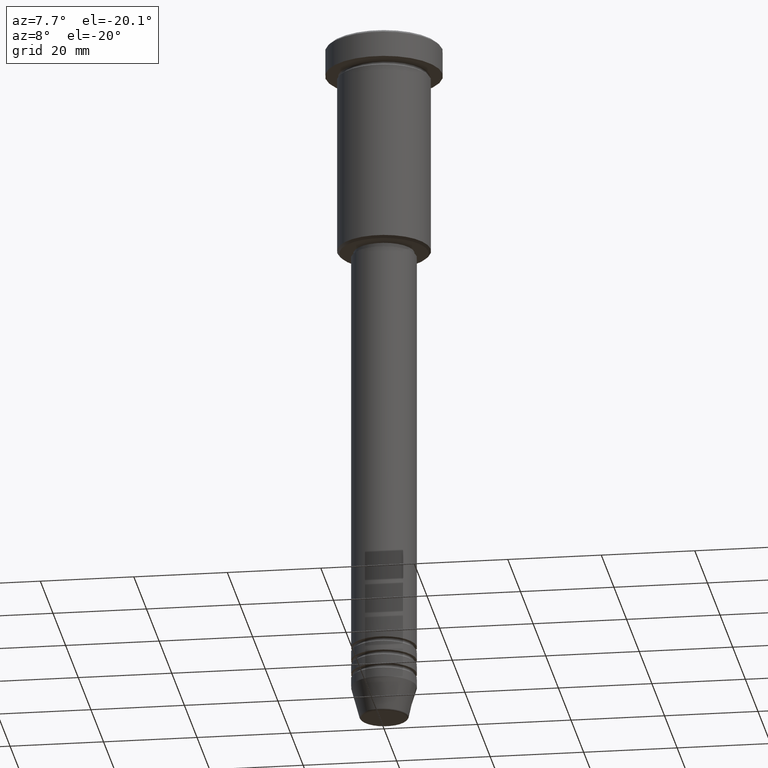
[diagram: clean part render]
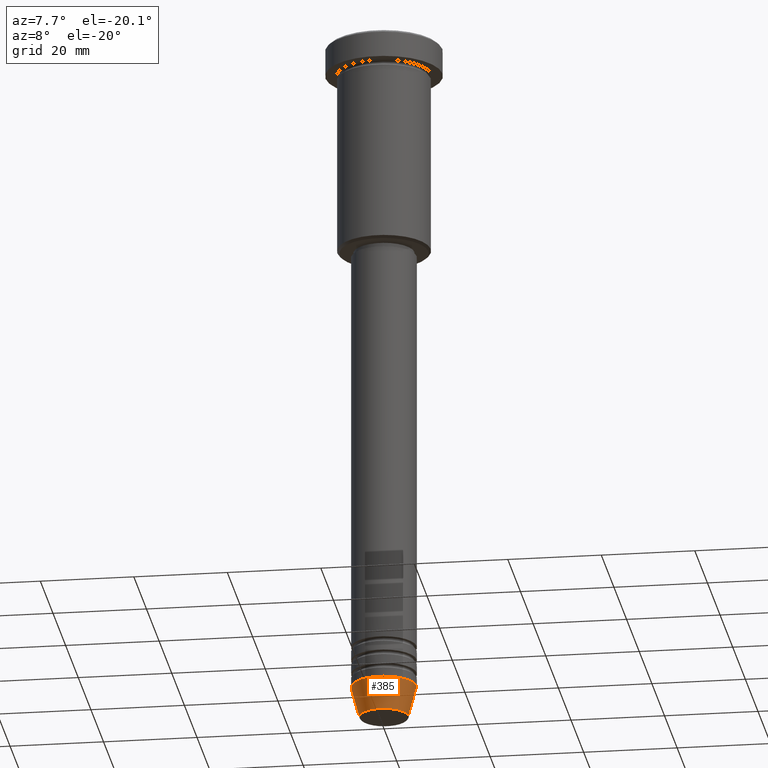
[diagram: same view with one face highlighted and labeled with its STEP entity id]
A machine part, auxiliary view. The second image highlights one B-rep face of the part: STEP entity #385.
In plain terms, the highlighted conical surface has half-angle 15 deg.
Its self-contained STEP definition (entity closure, byte-faithful):
#87 = DIRECTION ( 'NONE',  ( 1.000000000000000000, 0.000000000000000000, 0.000000000000000000 ) ) ;
#99 = EDGE_CURVE ( 'NONE', #640, #1048, #1042, .T. ) ;
#137 = EDGE_CURVE ( 'NONE', #1048, #539, #1000, .T. ) ;
#215 = CARTESIAN_POINT ( 'NONE',  ( -7.000000000000000000, 8.572527594031473190E-16, -144.0000000000000000 ) ) ;
#230 = EDGE_CURVE ( 'NONE', #640, #327, #632, .T. ) ;
#327 = VERTEX_POINT ( 'NONE', #1146 ) ;
#340 = DIRECTION ( 'NONE',  ( -0.000000000000000000, -0.000000000000000000, 1.000000000000000000 ) ) ;
#385 = ADVANCED_FACE ( 'NONE', ( #712 ), #436, .T. ) ;
#410 = ORIENTED_EDGE ( 'NONE', *, *, #137, .F. ) ;
#436 = CONICAL_SURFACE ( 'NONE', #1106, 7.000000000000000000, 0.2617993877991500740 ) ;
#454 = LINE ( 'NONE', #1161, #647 ) ;
#496 = CARTESIAN_POINT ( 'NONE',  ( -7.000000000000000000, 8.572527594031473190E-16, -144.0000000000000000 ) ) ;
#521 = ORIENTED_EDGE ( 'NONE', *, *, #99, .F. ) ;
#525 = CARTESIAN_POINT ( 'NONE',  ( 7.000000000000000000, 0.000000000000000000, -144.0000000000000000 ) ) ;
#539 = VERTEX_POINT ( 'NONE', #525 ) ;
#550 = CARTESIAN_POINT ( 'NONE',  ( -5.223655072137196598, 7.484830028987062146E-16, -150.6294095225512137 ) ) ;
#553 = VECTOR ( 'NONE', #755, 1000.000000000000000 ) ;
#617 = CARTESIAN_POINT ( 'NONE',  ( 0.000000000000000000, 0.000000000000000000, -144.0000000000000000 ) ) ;
#632 = CIRCLE ( 'NONE', #687, 5.223655072137196598 ) ;
#640 = VERTEX_POINT ( 'NONE', #550 ) ;
#647 = VECTOR ( 'NONE', #814, 1000.000000000000000 ) ;
#687 = AXIS2_PLACEMENT_3D ( 'NONE', #1046, #933, #1116 ) ;
#712 = FACE_OUTER_BOUND ( 'NONE', #1011, .T. ) ;
#737 = EDGE_CURVE ( 'NONE', #327, #539, #454, .T. ) ;
#755 = DIRECTION ( 'NONE',  ( -0.2588190451025213501, 3.169619151431772337E-17, 0.9659258262890680902 ) ) ;
#793 = CARTESIAN_POINT ( 'NONE',  ( 0.000000000000000000, 0.000000000000000000, -144.0000000000000000 ) ) ;
#813 = ORIENTED_EDGE ( 'NONE', *, *, #737, .T. ) ;
#814 = DIRECTION ( 'NONE',  ( 0.2588190451025213501, 0.000000000000000000, 0.9659258262890680902 ) ) ;
#889 = DIRECTION ( 'NONE',  ( -0.000000000000000000, -0.000000000000000000, 1.000000000000000000 ) ) ;
#933 = DIRECTION ( 'NONE',  ( -0.000000000000000000, -0.000000000000000000, 1.000000000000000000 ) ) ;
#1000 = CIRCLE ( 'NONE', #1110, 7.000000000000000000 ) ;
#1011 = EDGE_LOOP ( 'NONE', ( #521, #1181, #813, #410 ) ) ;
#1042 = LINE ( 'NONE', #496, #553 ) ;
#1046 = CARTESIAN_POINT ( 'NONE',  ( 0.000000000000000000, 0.000000000000000000, -150.6294095225512137 ) ) ;
#1048 = VERTEX_POINT ( 'NONE', #215 ) ;
#1106 = AXIS2_PLACEMENT_3D ( 'NONE', #617, #889, #87 ) ;
#1110 = AXIS2_PLACEMENT_3D ( 'NONE', #793, #340, #1159 ) ;
#1116 = DIRECTION ( 'NONE',  ( 1.000000000000000000, 0.000000000000000000, 0.000000000000000000 ) ) ;
#1146 = CARTESIAN_POINT ( 'NONE',  ( 5.223655072137196598, 0.000000000000000000, -150.6294095225512137 ) ) ;
#1159 = DIRECTION ( 'NONE',  ( 1.000000000000000000, 0.000000000000000000, 0.000000000000000000 ) ) ;
#1161 = CARTESIAN_POINT ( 'NONE',  ( 7.000000000000000000, 0.000000000000000000, -144.0000000000000000 ) ) ;
#1181 = ORIENTED_EDGE ( 'NONE', *, *, #230, .T. ) ;